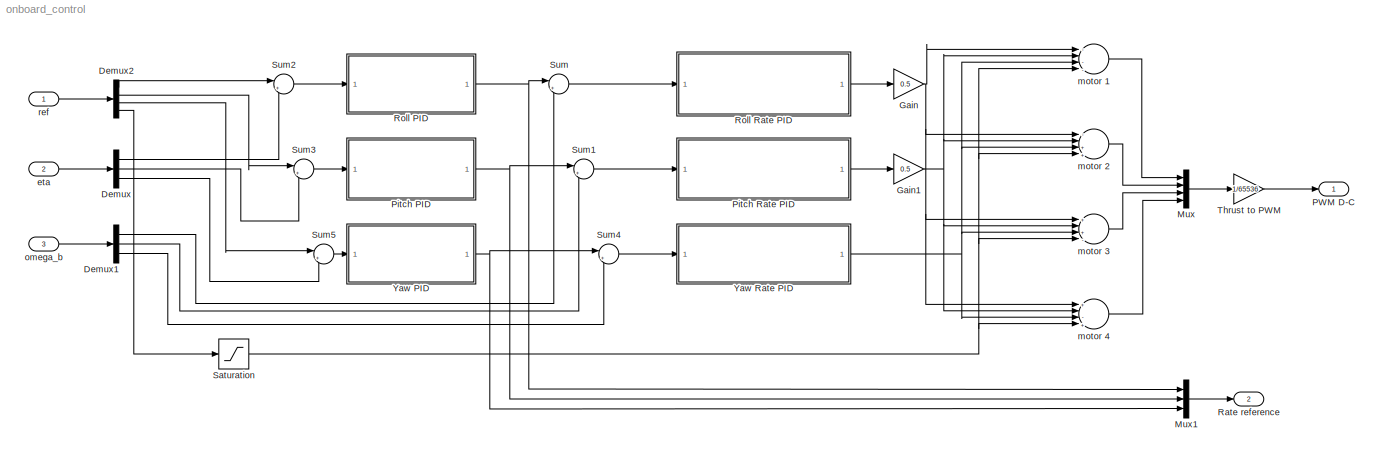
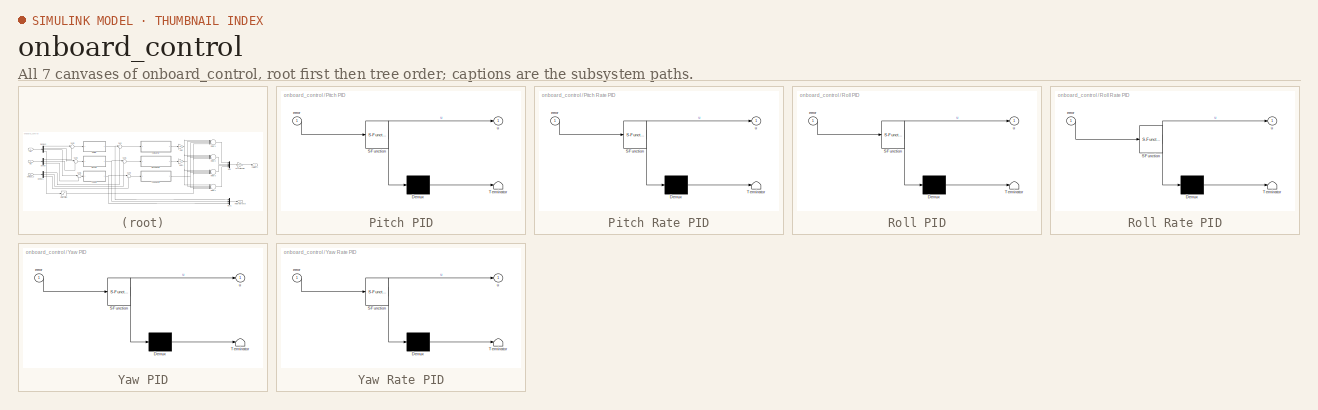
[diagram: thumbnail index - all 7 canvases of the model, root first then tree order]
MODEL onboard_control
KIND model
BLOCK [Demux] Demux
  DisplayOption = bar
  Outputs = 3
  Ports = [1, 3]
  SID = 19
BLOCK [Demux] Demux1
  DisplayOption = bar
  Outputs = 3
  Ports = [1, 3]
  SID = 21
BLOCK [Demux] Demux2
  DisplayOption = bar
  Ports = [1, 4]
  SID = 39
BLOCK [Gain] Gain
  Gain = 0.5
  OutDataTypeStr = Inherit: Inherit via internal rule
  ParamDataTypeStr = Inherit: Inherit via internal rule
  SID = 32
  SaturateOnIntegerOverflow = off
BLOCK [Gain] Gain1
  Gain = 0.5
  OutDataTypeStr = Inherit: Inherit via internal rule
  ParamDataTypeStr = Inherit: Inherit via internal rule
  SID = 33
  SaturateOnIntegerOverflow = off
BLOCK [Mux] Mux
  DisplayOption = bar
  Ports = [4, 1]
  SID = 34
BLOCK [Mux] Mux1
  DisplayOption = bar
  Inputs = 3
  Ports = [3, 1]
  SID = 50
BLOCK [Outport] PWM D-C
  IconDisplay = Port number
  SID = 22
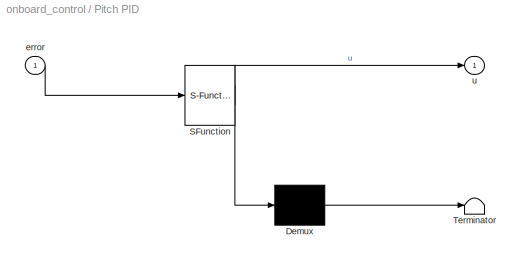
BLOCK [SubSystem] Pitch PID
  ErrorFcn = Stateflow.Translate.translate
  PermitHierarchicalResolution = ExplicitOnly
  Ports = [1, 1]
  RequestExecContextInheritance = off
  SFBlockType = MATLAB Function
  SID = 57
  SystemSampleTime = inner_rate_h
  TreatAsAtomicUnit = on
BLOCK [Demux] Pitch PID/ Demux 
  Outputs = 1
  Ports = [1, 1]
  SID = 57::20
BLOCK [S-Function] Pitch PID/ SFunction 
  EnableBusSupport = on
  FunctionName = sf_sfun
  Parameters = inner_ac,inner_angle_h
  PortCounts = [1 2]
  Ports = [1, 2]
  SFcnIsStateOwnerBlock = off
  SFunctionDeploymentMode = off
  SID = 57::19
  Tag = Stateflow S-Function onboard_control 1
BLOCK [Terminator] Pitch PID/ Terminator 
  SID = 57::21
BLOCK [Inport] Pitch PID/error
  IconDisplay = Port number
  SID = 57::1
BLOCK [Outport] Pitch PID/u
  IconDisplay = Port number
  SID = 57::5
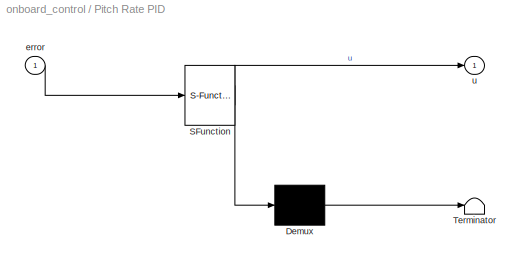
BLOCK [SubSystem] Pitch Rate PID
  ErrorFcn = Stateflow.Translate.translate
  PermitHierarchicalResolution = ExplicitOnly
  Ports = [1, 1]
  RequestExecContextInheritance = off
  SFBlockType = MATLAB Function
  SID = 54
  SystemSampleTime = inner_rate_h
  TreatAsAtomicUnit = on
BLOCK [Demux] Pitch Rate PID/ Demux 
  Outputs = 1
  Ports = [1, 1]
  SID = 54::20
BLOCK [S-Function] Pitch Rate PID/ SFunction 
  EnableBusSupport = on
  FunctionName = sf_sfun
  Parameters = inner_arc,inner_rate_h
  PortCounts = [1 2]
  Ports = [1, 2]
  SFcnIsStateOwnerBlock = off
  SFunctionDeploymentMode = off
  SID = 54::19
  Tag = Stateflow S-Function onboard_control 3
BLOCK [Terminator] Pitch Rate PID/ Terminator 
  SID = 54::21
BLOCK [Inport] Pitch Rate PID/error
  IconDisplay = Port number
  SID = 54::1
BLOCK [Outport] Pitch Rate PID/u
  IconDisplay = Port number
  SID = 54::5
BLOCK [Outport] Rate reference
  IconDisplay = Port number
  Port = 2
  SID = 51
BLOCK [SubSystem] Roll PID
  ErrorFcn = Stateflow.Translate.translate
  PermitHierarchicalResolution = ExplicitOnly
  Ports = [1, 1]
  RequestExecContextInheritance = off
  SFBlockType = MATLAB Function
  SID = 58
  SystemSampleTime = inner_rate_h
  TreatAsAtomicUnit = on
BLOCK [Demux] Roll PID/ Demux 
  Outputs = 1
  Ports = [1, 1]
  SID = 58::20
BLOCK [S-Function] Roll PID/ SFunction 
  EnableBusSupport = on
  FunctionName = sf_sfun
  Parameters = inner_ac,inner_angle_h
  PortCounts = [1 2]
  Ports = [1, 2]
  SFcnIsStateOwnerBlock = off
  SFunctionDeploymentMode = off
  SID = 58::19
  Tag = Stateflow S-Function onboard_control 5
BLOCK [Terminator] Roll PID/ Terminator 
  SID = 58::21
BLOCK [Inport] Roll PID/error
  IconDisplay = Port number
  SID = 58::1
BLOCK [Outport] Roll PID/u
  IconDisplay = Port number
  SID = 58::5
BLOCK [SubSystem] Roll Rate PID
  ErrorFcn = Stateflow.Translate.translate
  PermitHierarchicalResolution = ExplicitOnly
  Ports = [1, 1]
  RequestExecContextInheritance = off
  SFBlockType = MATLAB Function
  SID = 52
  SystemSampleTime = inner_rate_h
  TreatAsAtomicUnit = on
BLOCK [Demux] Roll Rate PID/ Demux 
  Outputs = 1
  Ports = [1, 1]
  SID = 52::20
BLOCK [S-Function] Roll Rate PID/ SFunction 
  EnableBusSupport = on
  FunctionName = sf_sfun
  Parameters = inner_arc,inner_rate_h
  PortCounts = [1 2]
  Ports = [1, 2]
  SFcnIsStateOwnerBlock = off
  SFunctionDeploymentMode = off
  SID = 52::19
  Tag = Stateflow S-Function onboard_control 2
BLOCK [Terminator] Roll Rate PID/ Terminator 
  SID = 52::21
BLOCK [Inport] Roll Rate PID/error
  IconDisplay = Port number
  SID = 52::1
BLOCK [Outport] Roll Rate PID/u
  IconDisplay = Port number
  SID = 52::5
BLOCK [Saturate] Saturation
  InputPortMap = u0
  LowerLimit = 65535*inner_thrust_min
  Ports = [1, 1]
  SID = 56
  UpperLimit = 65535*inner_thrust_lim
BLOCK [Sum] Sum
  IconShape = round
  InputSameDT = off
  Inputs = |+-
  OutDataTypeStr = Inherit: Inherit via internal rule
  Ports = [2, 1]
  SID = 10
  SaturateOnIntegerOverflow = off
BLOCK [Sum] Sum1
  IconShape = round
  InputSameDT = off
  Inputs = |+-
  OutDataTypeStr = Inherit: Inherit via internal rule
  Ports = [2, 1]
  SID = 11
  SaturateOnIntegerOverflow = off
BLOCK [Sum] Sum2
  IconShape = round
  InputSameDT = off
  Inputs = |+-
  OutDataTypeStr = Inherit: Inherit via internal rule
  Ports = [2, 1]
  SID = 36
  SaturateOnIntegerOverflow = off
BLOCK [Sum] Sum3
  IconShape = round
  InputSameDT = off
  Inputs = |+-
  OutDataTypeStr = Inherit: Inherit via internal rule
  Ports = [2, 1]
  SID = 37
  SaturateOnIntegerOverflow = off
BLOCK [Sum] Sum4
  IconShape = round
  InputSameDT = off
  Inputs = |+-
  OutDataTypeStr = Inherit: Inherit via internal rule
  Ports = [2, 1]
  SID = 16
  SaturateOnIntegerOverflow = off
BLOCK [Sum] Sum5
  IconShape = round
  InputSameDT = off
  Inputs = |+-
  OutDataTypeStr = Inherit: Inherit via internal rule
  Ports = [2, 1]
  SID = 38
  SaturateOnIntegerOverflow = off
BLOCK [Gain] Thrust to PWM
  Gain = 1/65536
  OutDataTypeStr = Inherit: Inherit via internal rule
  ParamDataTypeStr = Inherit: Inherit via internal rule
  SID = 41
  SaturateOnIntegerOverflow = off
BLOCK [SubSystem] Yaw PID
  ErrorFcn = Stateflow.Translate.translate
  PermitHierarchicalResolution = ExplicitOnly
  Ports = [1, 1]
  RequestExecContextInheritance = off
  SFBlockType = MATLAB Function
  SID = 59
  SystemSampleTime = inner_rate_h
  TreatAsAtomicUnit = on
BLOCK [Demux] Yaw PID/ Demux 
  Outputs = 1
  Ports = [1, 1]
  SID = 59::20
BLOCK [S-Function] Yaw PID/ SFunction 
  EnableBusSupport = on
  FunctionName = sf_sfun
  Parameters = inner_angle_h,inner_yc
  PortCounts = [1 2]
  Ports = [1, 2]
  SFcnIsStateOwnerBlock = off
  SFunctionDeploymentMode = off
  SID = 59::19
  Tag = Stateflow S-Function onboard_control 6
BLOCK [Terminator] Yaw PID/ Terminator 
  SID = 59::21
BLOCK [Inport] Yaw PID/error
  IconDisplay = Port number
  SID = 59::1
BLOCK [Outport] Yaw PID/u
  IconDisplay = Port number
  SID = 59::5
BLOCK [SubSystem] Yaw Rate PID
  ErrorFcn = Stateflow.Translate.translate
  PermitHierarchicalResolution = ExplicitOnly
  Ports = [1, 1]
  RequestExecContextInheritance = off
  SFBlockType = MATLAB Function
  SID = 55
  SystemSampleTime = inner_rate_h
  TreatAsAtomicUnit = on
BLOCK [Demux] Yaw Rate PID/ Demux 
  Outputs = 1
  Ports = [1, 1]
  SID = 55::20
BLOCK [S-Function] Yaw Rate PID/ SFunction 
  EnableBusSupport = on
  FunctionName = sf_sfun
  Parameters = inner_rate_h,inner_yrc
  PortCounts = [1 2]
  Ports = [1, 2]
  SFcnIsStateOwnerBlock = off
  SFunctionDeploymentMode = off
  SID = 55::19
  Tag = Stateflow S-Function onboard_control 4
BLOCK [Terminator] Yaw Rate PID/ Terminator 
  SID = 55::21
BLOCK [Inport] Yaw Rate PID/error
  IconDisplay = Port number
  SID = 55::1
BLOCK [Outport] Yaw Rate PID/u
  IconDisplay = Port number
  SID = 55::5
BLOCK [Inport] eta
  IconDisplay = Port number
  Port = 2
  SID = 18
BLOCK [Sum] motor 1
  InputSameDT = off
  Inputs = -|-|-|+
  OutDataTypeStr = Inherit: Inherit via internal rule
  Ports = [4, 1]
  SID = 25
  SaturateOnIntegerOverflow = off
BLOCK [Sum] motor 2
  InputSameDT = off
  Inputs = -|+|+|+
  OutDataTypeStr = Inherit: Inherit via internal rule
  Ports = [4, 1]
  SID = 29
  SaturateOnIntegerOverflow = off
BLOCK [Sum] motor 3
  InputSameDT = off
  Inputs = +|+|-|+
  OutDataTypeStr = Inherit: Inherit via internal rule
  Ports = [4, 1]
  SID = 30
  SaturateOnIntegerOverflow = off
BLOCK [Sum] motor 4
  InputSameDT = off
  Inputs = +|-|+|+
  OutDataTypeStr = Inherit: Inherit via internal rule
  Ports = [4, 1]
  SID = 31
  SaturateOnIntegerOverflow = off
BLOCK [Inport] omega_b
  IconDisplay = Port number
  Port = 3
  PortDimensions = [3]
  SID = 20
BLOCK [Inport] ref
  IconDisplay = Port number
  SID = 35
LINE Demux1:1 -> Sum:2
LINE Demux1:2 -> Sum1:2
LINE Demux1:3 -> Sum4:2
LINE Demux2:1 -> Sum2:1
LINE Demux2:2 -> Sum3:1
LINE Demux2:3 -> Sum5:1
LINE Demux2:4 -> Saturation:1
LINE Demux:1 -> Sum2:2
LINE Demux:2 -> Sum3:2
LINE Demux:3 -> Sum5:2
NET Gain1:1 -> motor 1:2, motor 2:2, motor 3:2, motor 4:2
NET Gain:1 -> motor 1:1, motor 2:1, motor 3:1, motor 4:1
LINE Mux1:1 -> Rate reference:1
LINE Mux:1 -> Thrust to PWM:1
LINE Pitch PID/ Demux :1 -> Pitch PID/ Terminator :1
LINE Pitch PID/ SFunction :1 -> Pitch PID/ Demux :1
LINE Pitch PID/ SFunction :2 -> Pitch PID/u:1
LINE Pitch PID/error:1 -> Pitch PID/ SFunction :1
NET Pitch PID:1 -> Mux1:2, Sum1:1
LINE Pitch Rate PID/ Demux :1 -> Pitch Rate PID/ Terminator :1
LINE Pitch Rate PID/ SFunction :1 -> Pitch Rate PID/ Demux :1
LINE Pitch Rate PID/ SFunction :2 -> Pitch Rate PID/u:1
LINE Pitch Rate PID/error:1 -> Pitch Rate PID/ SFunction :1
LINE Pitch Rate PID:1 -> Gain1:1
LINE Roll PID/ Demux :1 -> Roll PID/ Terminator :1
LINE Roll PID/ SFunction :1 -> Roll PID/ Demux :1
LINE Roll PID/ SFunction :2 -> Roll PID/u:1
LINE Roll PID/error:1 -> Roll PID/ SFunction :1
NET Roll PID:1 -> Mux1:1, Sum:1
LINE Roll Rate PID/ Demux :1 -> Roll Rate PID/ Terminator :1
LINE Roll Rate PID/ SFunction :1 -> Roll Rate PID/ Demux :1
LINE Roll Rate PID/ SFunction :2 -> Roll Rate PID/u:1
LINE Roll Rate PID/error:1 -> Roll Rate PID/ SFunction :1
LINE Roll Rate PID:1 -> Gain:1
NET Saturation:1 -> motor 1:4, motor 2:4, motor 3:4, motor 4:4
LINE Sum1:1 -> Pitch Rate PID:1
LINE Sum2:1 -> Roll PID:1
LINE Sum3:1 -> Pitch PID:1
LINE Sum4:1 -> Yaw Rate PID:1
LINE Sum5:1 -> Yaw PID:1
LINE Sum:1 -> Roll Rate PID:1
LINE Thrust to PWM:1 -> PWM D-C:1
LINE Yaw PID/ Demux :1 -> Yaw PID/ Terminator :1
LINE Yaw PID/ SFunction :1 -> Yaw PID/ Demux :1
LINE Yaw PID/ SFunction :2 -> Yaw PID/u:1
LINE Yaw PID/error:1 -> Yaw PID/ SFunction :1
NET Yaw PID:1 -> Mux1:3, Sum4:1
LINE Yaw Rate PID/ Demux :1 -> Yaw Rate PID/ Terminator :1
LINE Yaw Rate PID/ SFunction :1 -> Yaw Rate PID/ Demux :1
LINE Yaw Rate PID/ SFunction :2 -> Yaw Rate PID/u:1
LINE Yaw Rate PID/error:1 -> Yaw Rate PID/ SFunction :1
NET Yaw Rate PID:1 -> motor 1:3, motor 2:3, motor 3:3, motor 4:3
LINE eta:1 -> Demux:1
LINE motor 1:1 -> Mux:1
LINE motor 2:1 -> Mux:2
LINE motor 3:1 -> Mux:3
LINE motor 4:1 -> Mux:4
LINE omega_b:1 -> Demux1:1
LINE ref:1 -> Demux2:1
note: NET lines group one-source signal fan-out (src -> all destinations, sorted); 1:1 wires keep LINE
CHART Pitch PID states=1 transitions=1
  STATE_LABEL 'eML_blk_kernel()'
CHART Roll Rate PID states=1 transitions=1
  STATE_LABEL 'eML_blk_kernel()'
CHART Pitch Rate PID states=1 transitions=1
  STATE_LABEL 'eML_blk_kernel()'
CHART Yaw Rate PID states=1 transitions=1
  STATE_LABEL 'eML_blk_kernel()'
CHART Roll PID states=1 transitions=1
  STATE_LABEL 'eML_blk_kernel()'
CHART Yaw PID states=1 transitions=1
  STATE_LABEL 'eML_blk_kernel()'
